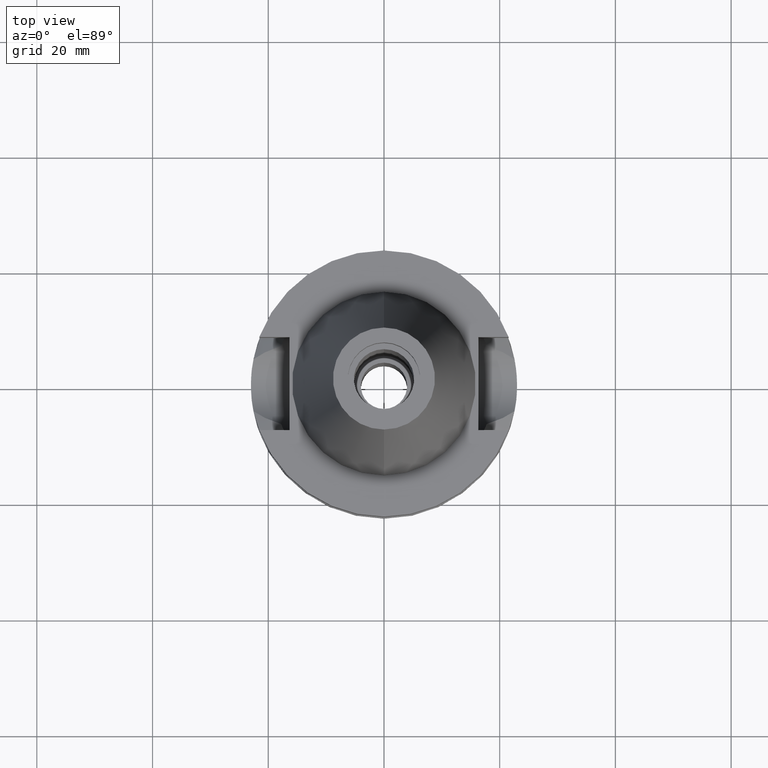
[diagram: clean part render]
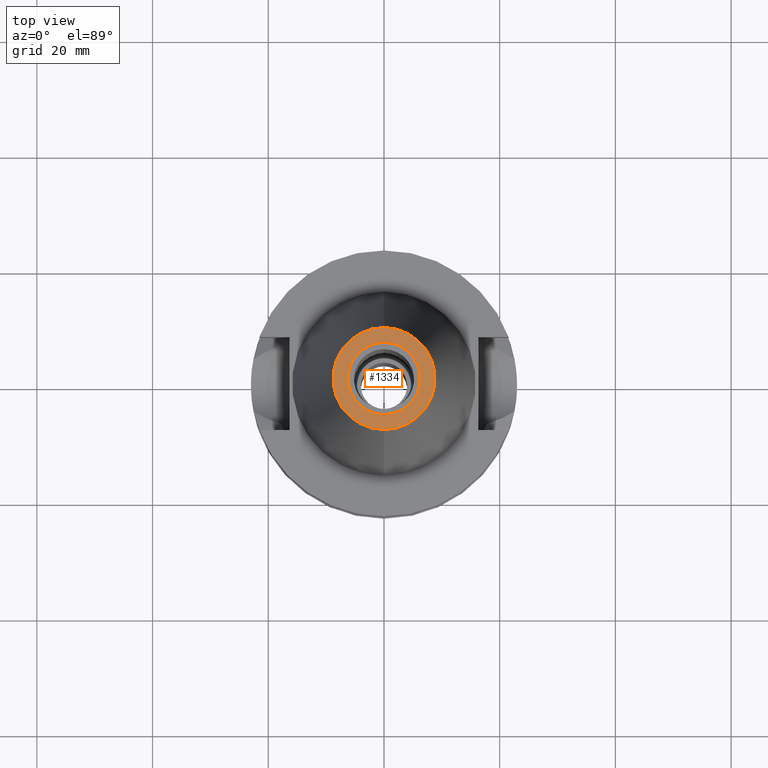
[diagram: same view with one face highlighted and labeled with its STEP entity id]
A machine part, top view. The second image highlights one B-rep face of the part: STEP entity #1334.
In plain terms, the highlighted planar face has unit normal (0, 0, -1).
Its self-contained STEP definition (entity closure, byte-faithful):
#17=CARTESIAN_POINT('',(0.E0,1.521011324541E-14,4.84E1));
#18=DIRECTION('',(0.E0,0.E0,-1.E0));
#19=DIRECTION('',(0.E0,-1.E0,0.E0));
#20=AXIS2_PLACEMENT_3D('',#17,#18,#19);
#26=CARTESIAN_POINT('',(0.E0,1.521011324541E-14,4.84E1));
#27=DIRECTION('',(0.E0,0.E0,-1.E0));
#28=DIRECTION('',(0.E0,1.E0,0.E0));
#29=AXIS2_PLACEMENT_3D('',#26,#27,#28);
#34=CARTESIAN_POINT('',(0.E0,1.883751706448E-14,4.84E1));
#35=DIRECTION('',(0.E0,0.E0,1.E0));
#36=DIRECTION('',(0.E0,-1.E0,0.E0));
#37=AXIS2_PLACEMENT_3D('',#34,#35,#36);
#42=CARTESIAN_POINT('',(0.E0,1.883751706448E-14,4.84E1));
#43=DIRECTION('',(0.E0,0.E0,1.E0));
#44=DIRECTION('',(0.E0,1.E0,0.E0));
#45=AXIS2_PLACEMENT_3D('',#42,#43,#44);
#1153=CARTESIAN_POINT('',(0.E0,-8.816791732783E0,4.84E1));
#1154=CARTESIAN_POINT('',(0.E0,8.816791732783E0,4.84E1));
#1155=VERTEX_POINT('',#1153);
#1156=VERTEX_POINT('',#1154);
#1157=CARTESIAN_POINT('',(0.E0,-6.25E0,4.84E1));
#1158=CARTESIAN_POINT('',(0.E0,6.25E0,4.84E1));
#1159=VERTEX_POINT('',#1157);
#1160=VERTEX_POINT('',#1158);
#1317=CARTESIAN_POINT('',(0.E0,1.817375849935E-14,4.84E1));
#1318=DIRECTION('',(0.E0,0.E0,-1.E0));
#1319=DIRECTION('',(0.E0,-1.E0,0.E0));
#1320=AXIS2_PLACEMENT_3D('',#1317,#1318,#1319);
#1321=PLANE('',#1320);
#1323=ORIENTED_EDGE('',*,*,#1322,.T.);
#1325=ORIENTED_EDGE('',*,*,#1324,.T.);
#1326=EDGE_LOOP('',(#1323,#1325));
#1327=FACE_OUTER_BOUND('',#1326,.F.);
#1329=ORIENTED_EDGE('',*,*,#1328,.T.);
#1331=ORIENTED_EDGE('',*,*,#1330,.T.);
#1332=EDGE_LOOP('',(#1329,#1331));
#1333=FACE_BOUND('',#1332,.F.);
#21=CIRCLE('',#20,8.816791732783E0);
#30=CIRCLE('',#29,8.816791732783E0);
#38=CIRCLE('',#37,6.25E0);
#46=CIRCLE('',#45,6.25E0);
#1322=EDGE_CURVE('',#1155,#1156,#21,.T.);
#1324=EDGE_CURVE('',#1156,#1155,#30,.T.);
#1328=EDGE_CURVE('',#1159,#1160,#38,.T.);
#1330=EDGE_CURVE('',#1160,#1159,#46,.T.);
#1334=ADVANCED_FACE('',(#1327,#1333),#1321,.F.);